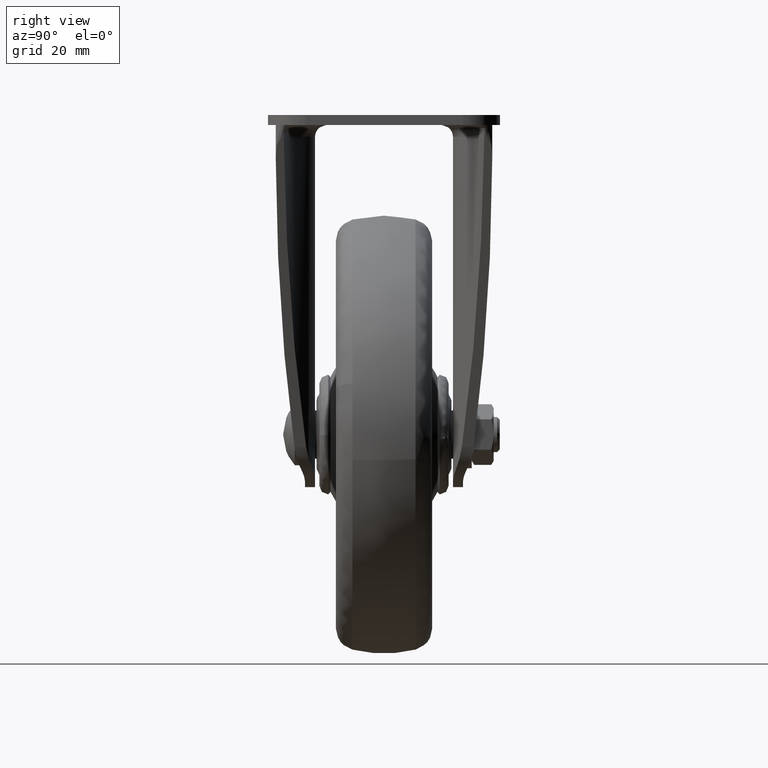
[diagram: clean part render]
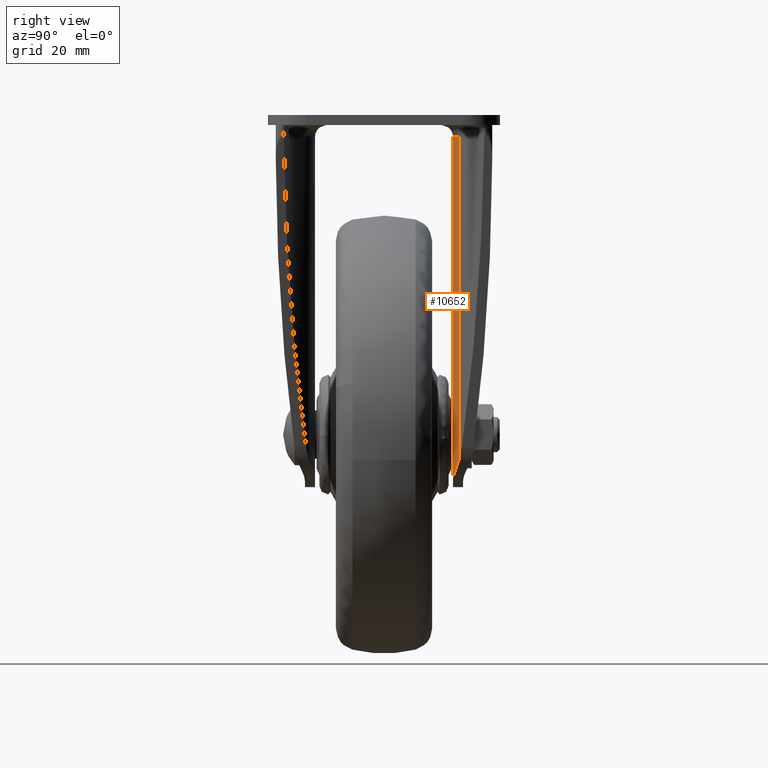
[diagram: same view with one face highlighted and labeled with its STEP entity id]
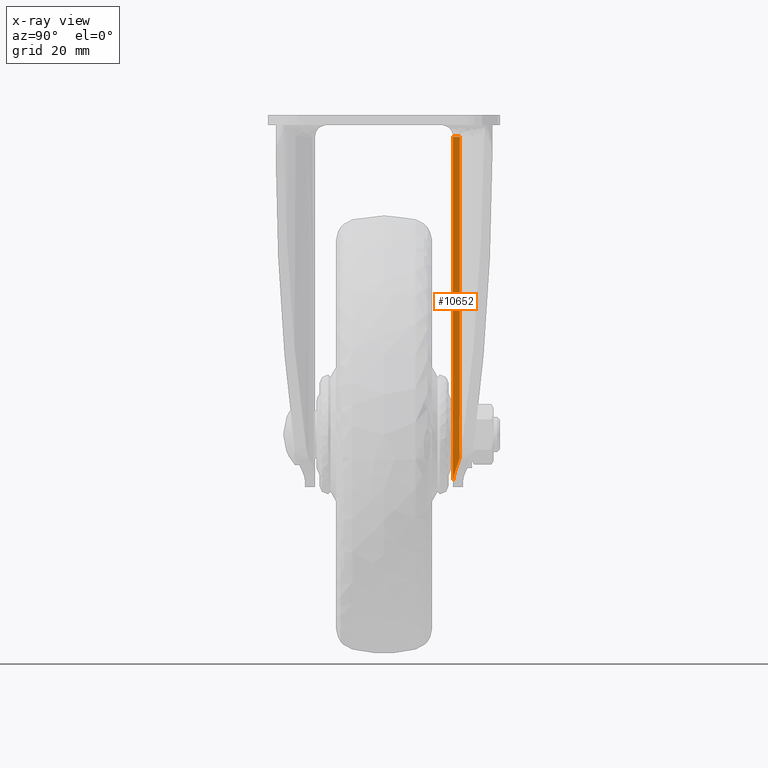
[diagram: x-ray of the same camera — body ghosted, the highlighted face saturated]
A machine part, right view. The second image highlights one B-rep face of the part: STEP entity #10652.
The next image is the same camera in x-ray: the body ghosted, the highlighted face saturated — about 0% of this face is hidden behind the body in this view.
In plain terms, the highlighted face is a freeform B-spline surface patch.
Its self-contained STEP definition (entity closure, byte-faithful):
#8102=CARTESIAN_POINT('',(5.520442000000000,15.750000000000000,-4.999999999999890));
#8103=VERTEX_POINT('',#8102);
#8150=CARTESIAN_POINT('',(10.752015536604739,17.263225094700800,-4.999999999999890));
#8151=VERTEX_POINT('',#8150);
#8183=CARTESIAN_POINT('',(10.752015536604750,17.263225094700779,-4.999999999999890));
#8184=CARTESIAN_POINT('',(8.355077855599950,15.750000000000004,-4.999999999999891));
#8185=CARTESIAN_POINT('',(5.520442000000000,15.750000000000000,-4.999999999999890));
#8193=(BOUNDED_CURVE()B_SPLINE_CURVE(2,(#8183,#8184,#8185),.UNSPECIFIED.,.F.,.U.)CURVE()GEOMETRIC_REPRESENTATION_ITEM()QUASI_UNIFORM_CURVE()RATIONAL_B_SPLINE_CURVE((1.0,0.960622005799092,1.0))REPRESENTATION_ITEM(''));
#8194=EDGE_CURVE('',#8151,#8103,#8193,.T.);
#10230=CARTESIAN_POINT('',(10.752015116898759,17.263225789377401,-78.328616593748606));
#10231=VERTEX_POINT('',#10230);
#10241=CARTESIAN_POINT('',(5.520442000000000,15.750000000000000,-83.654797223085112));
#10242=VERTEX_POINT('',#10241);
#10243=CARTESIAN_POINT('',(5.520442000000000,15.750000000000000,-83.654797223085112));
#10244=CARTESIAN_POINT('',(5.810851628011518,15.750000000000000,-83.504330767132117));
#10245=CARTESIAN_POINT('',(6.092019886929279,15.762858597238450,-83.343627748184190));
#10246=CARTESIAN_POINT('',(6.637117572632932,15.809985945392031,-83.002600233010568));
#10247=CARTESIAN_POINT('',(6.901042817981061,15.844270401863350,-82.822273124612437));
#10248=CARTESIAN_POINT('',(7.412397778917021,15.930865476490180,-82.442340829941585));
#10249=CARTESIAN_POINT('',(7.659825525676724,15.983186809098990,-82.242735091753744));
#10250=CARTESIAN_POINT('',(8.018854966441268,16.073019902205040,-81.928786144702599));
#10251=CARTESIAN_POINT('',(8.136509808912784,16.104859034920150,-81.821709608143891));
#10252=CARTESIAN_POINT('',(8.309966512764788,16.155204757396280,-81.657411960168858));
#10253=CARTESIAN_POINT('',(8.367325286759398,16.172432685218670,-81.601986345797357));
#10254=CARTESIAN_POINT('',(8.480547330832936,16.207554408932332,-81.490383885107519));
#10255=CARTESIAN_POINT('',(8.536464482310144,16.225462916565590,-81.434157775097958));
#10256=CARTESIAN_POINT('',(9.033597617106821,16.389526355302898,-80.924314126476631));
#10257=CARTESIAN_POINT('',(9.432369212708810,16.555747673330110,-80.444303906235575));
#10258=CARTESIAN_POINT('',(9.971948416702311,16.817072198833149,-79.682592663360992));
#10259=CARTESIAN_POINT('',(10.141971005974840,16.906205281196019,-79.421690527451346));
#10260=CARTESIAN_POINT('',(10.382391844395400,17.040600897592348,-79.019165105972277));
#10261=CARTESIAN_POINT('',(10.460116002150849,17.085530998164771,-78.883066858559886));
#10262=CARTESIAN_POINT('',(10.610061525504539,17.174835058779038,-78.608127755075259));
#10263=CARTESIAN_POINT('',(10.682365742935970,17.219254069607871,-78.469154219556302));
#10264=CARTESIAN_POINT('',(10.752015116898759,17.263225789377401,-78.328616593748606));
#10265=B_SPLINE_CURVE_WITH_KNOTS('',3,(#10243,#10244,#10245,#10246,#10247,#10248,#10249,#10250,#10251,#10252,#10253,#10254,#10255,#10256,#10257,#10258,#10259,#10260,#10261,#10262,#10263,#10264),.UNSPECIFIED.,.F.,.U.,(4,2,2,2,2,2,2,2,2,2,4),(0.0,0.125000000000009,0.250000000000018,0.375000000000026,0.437500000000029,0.468750000000029,0.500000000000028,0.750000000000012,0.875000000000004,0.937500000000002,0.999999903555523),.UNSPECIFIED.);
#10266=EDGE_CURVE('',#10242,#10231,#10265,.T.);
#10619=CARTESIAN_POINT('',(10.752015116898759,17.263225789377401,-78.328616593748606));
#10620=CARTESIAN_POINT('',(10.752015536604739,17.263225094700800,-4.999999999999890));
#10621=QUASI_UNIFORM_CURVE('',1,(#10619,#10620),.UNSPECIFIED.,.F.,.U.);
#10622=EDGE_CURVE('',#10231,#8151,#10621,.T.);
#10628=CARTESIAN_POINT('',(10.978876795136127,17.410866779119100,-85.621167153662242));
#10629=CARTESIAN_POINT('',(10.978876795136127,17.410866779119100,-2.984470821158325));
#10630=CARTESIAN_POINT('',(8.378273629150263,15.666796197605489,-85.621167153662228));
#10631=CARTESIAN_POINT('',(8.378273629150263,15.666796197605489,-2.984470821158326));
#10632=CARTESIAN_POINT('',(5.248201350113581,15.753782105906918,-85.621167153662242));
#10633=CARTESIAN_POINT('',(5.248201350113581,15.753782105906918,-2.984470821158325));
#10641=(BOUNDED_SURFACE()B_SPLINE_SURFACE(1,2,((#10628,#10630,#10632),(#10629,#10631,#10633)),.UNSPECIFIED.,.F.,.F.,.U.)B_SPLINE_SURFACE_WITH_KNOTS((2,2),(3,3),(0.0,82.636696332503917),(0.0,6.110380438583238),.UNSPECIFIED.)GEOMETRIC_REPRESENTATION_ITEM()RATIONAL_B_SPLINE_SURFACE(((0.998078106254928,0.947813847360692,0.991972044764703),(0.998078106254928,0.947813847360692,0.991972044764703)))REPRESENTATION_ITEM('')SURFACE());
#10642=ORIENTED_EDGE('',*,*,#10622,.T.);
#10643=ORIENTED_EDGE('',*,*,#8194,.T.);
#10644=CARTESIAN_POINT('',(5.520442000000000,15.750000000000000,-83.654797223085112));
#10645=CARTESIAN_POINT('',(5.520442000000000,15.750000000000000,-4.999999999999890));
#10646=QUASI_UNIFORM_CURVE('',1,(#10644,#10645),.UNSPECIFIED.,.F.,.U.);
#10647=EDGE_CURVE('',#10242,#8103,#10646,.T.);
#10648=ORIENTED_EDGE('',*,*,#10647,.F.);
#10649=ORIENTED_EDGE('',*,*,#10266,.T.);
#10650=EDGE_LOOP('',(#10642,#10643,#10648,#10649));
#10651=FACE_OUTER_BOUND('',#10650,.T.);
#10652=ADVANCED_FACE('',(#10651),#10641,.T.);